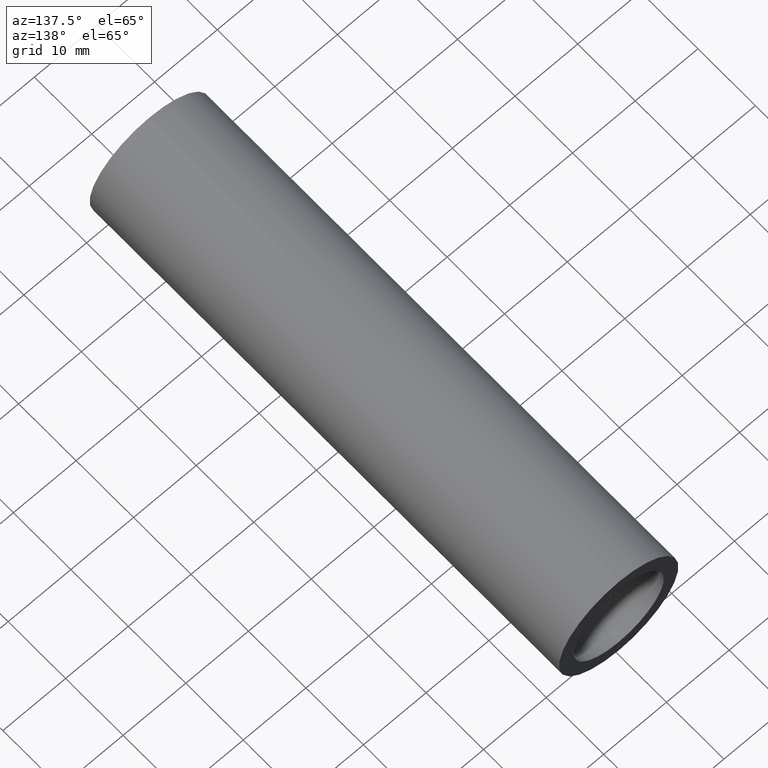
[diagram: clean part render]
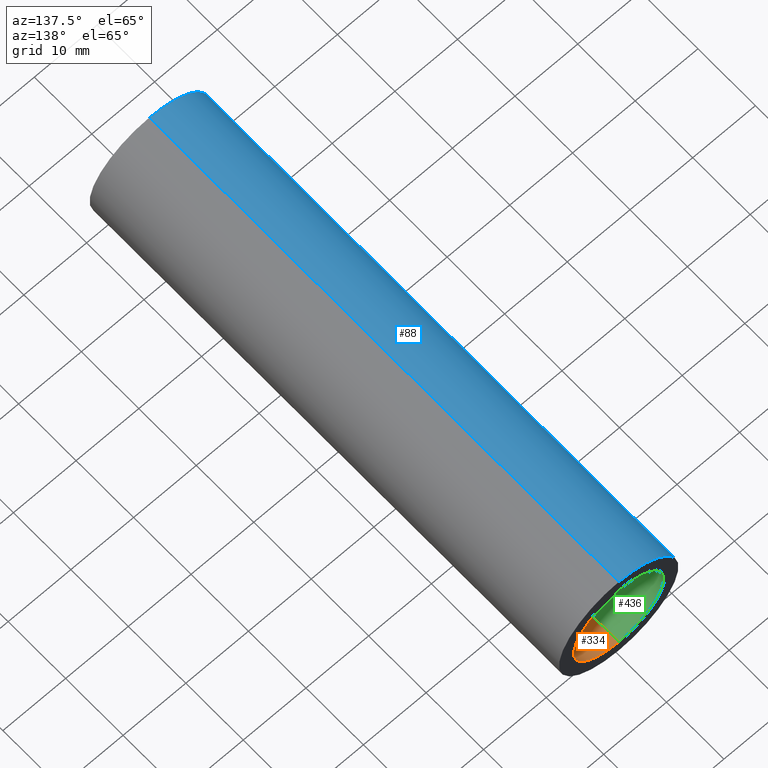
[diagram: same view with three faces highlighted in distinct colors, each labeled with its STEP entity id]
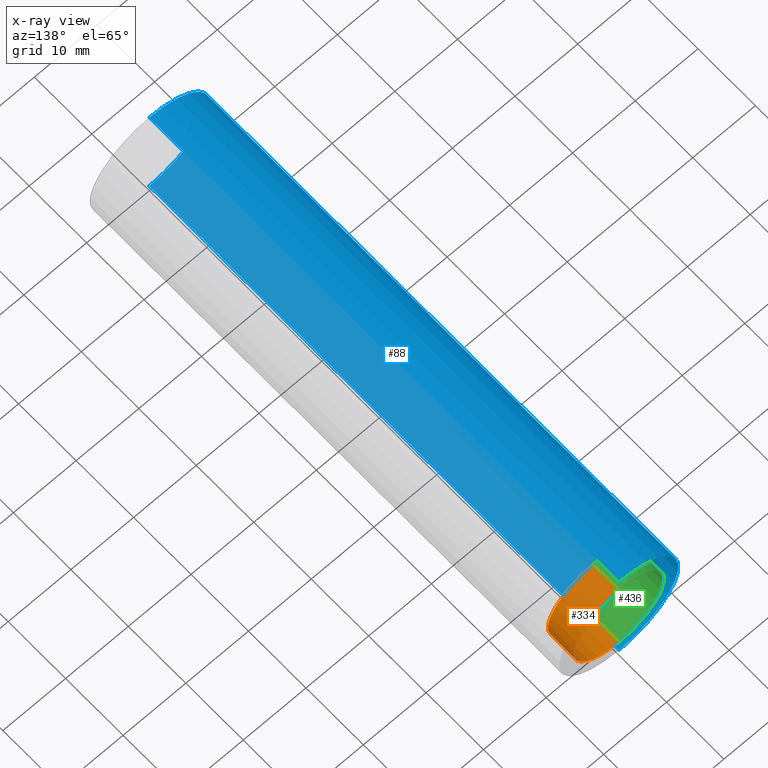
[diagram: x-ray of the same camera — body ghosted, the three highlighted faces saturated]
A machine part, auxiliary view with three faces highlighted in distinct colors.
The next image is the same camera in x-ray (body ghosted, the three faces saturated) — at least one of them is partly hidden behind the body in this view.
Their STEP definitions:

[orange] entity #334 — the highlighted cylindrical surface (partial cylindrical patch) has radius 7.2 mm, axis along (-0, 1, -0).
#43 = AXIS2_PLACEMENT_3D ( 'NONE', #624, #180, #384 ) ;
#76 = ORIENTED_EDGE ( 'NONE', *, *, #469, .F. ) ;
#77 = EDGE_CURVE ( 'NONE', #572, #400, #190, .T. ) ;
#99 = EDGE_CURVE ( 'NONE', #145, #400, #172, .T. ) ;
#101 = DIRECTION ( 'NONE',  ( 0.0000000000000000000, 0.0000000000000000000, 1.000000000000000000 ) ) ;
#113 = AXIS2_PLACEMENT_3D ( 'NONE', #612, #468, #463 ) ;
#114 = CARTESIAN_POINT ( 'NONE',  ( 0.0000000000000000000, 77.19999999999997400, 7.200000000000009900 ) ) ;
#145 = VERTEX_POINT ( 'NONE', #215 ) ;
#150 = CIRCLE ( 'NONE', #43, 7.200000000000009900 ) ;
#172 = LINE ( 'NONE', #441, #620 ) ;
#180 = DIRECTION ( 'NONE',  ( -0.0000000000000000000, 1.000000000000000000, -0.0000000000000000000 ) ) ;
#185 = LINE ( 'NONE', #297, #289 ) ;
#190 = CIRCLE ( 'NONE', #444, 7.200000000000009900 ) ;
#207 = CARTESIAN_POINT ( 'NONE',  ( 0.0000000000000000000, 81.69999999999997400, 0.0000000000000000000 ) ) ;
#215 = CARTESIAN_POINT ( 'NONE',  ( 8.817456953860955100E-016, 77.19999999999997400, -7.200000000000009900 ) ) ;
#286 = FACE_OUTER_BOUND ( 'NONE', #467, .T. ) ;
#289 = VECTOR ( 'NONE', #546, 1000.000000000000000 ) ;
#297 = CARTESIAN_POINT ( 'NONE',  ( 0.0000000000000000000, 161.3761669434274500, 7.200000000000009900 ) ) ;
#334 = ADVANCED_FACE ( 'NONE', ( #286 ), #371, .F. ) ;
#371 = CYLINDRICAL_SURFACE ( 'NONE', #113, 7.200000000000009900 ) ;
#384 = DIRECTION ( 'NONE',  ( 0.0000000000000000000, 0.0000000000000000000, 1.000000000000000000 ) ) ;
#400 = VERTEX_POINT ( 'NONE', #426 ) ;
#411 = ORIENTED_EDGE ( 'NONE', *, *, #607, .T. ) ;
#426 = CARTESIAN_POINT ( 'NONE',  ( 8.817456953860955100E-016, 81.69999999999997400, -7.200000000000009900 ) ) ;
#441 = CARTESIAN_POINT ( 'NONE',  ( 8.817456953860955100E-016, 161.3761669434274500, -7.200000000000009900 ) ) ;
#444 = AXIS2_PLACEMENT_3D ( 'NONE', #207, #538, #101 ) ;
#463 = DIRECTION ( 'NONE',  ( 0.0000000000000000000, 0.0000000000000000000, 1.000000000000000000 ) ) ;
#467 = EDGE_LOOP ( 'NONE', ( #623, #76, #411, #585 ) ) ;
#468 = DIRECTION ( 'NONE',  ( -0.0000000000000000000, 1.000000000000000000, -0.0000000000000000000 ) ) ;
#469 = EDGE_CURVE ( 'NONE', #613, #145, #150, .T. ) ;
#491 = CARTESIAN_POINT ( 'NONE',  ( 0.0000000000000000000, 81.69999999999997400, 7.200000000000009900 ) ) ;
#536 = DIRECTION ( 'NONE',  ( -0.0000000000000000000, 1.000000000000000000, -0.0000000000000000000 ) ) ;
#538 = DIRECTION ( 'NONE',  ( -0.0000000000000000000, 1.000000000000000000, -0.0000000000000000000 ) ) ;
#546 = DIRECTION ( 'NONE',  ( -0.0000000000000000000, 1.000000000000000000, -0.0000000000000000000 ) ) ;
#572 = VERTEX_POINT ( 'NONE', #491 ) ;
#585 = ORIENTED_EDGE ( 'NONE', *, *, #77, .T. ) ;
#607 = EDGE_CURVE ( 'NONE', #613, #572, #185, .T. ) ;
#612 = CARTESIAN_POINT ( 'NONE',  ( 0.0000000000000000000, 161.3761669434274500, 0.0000000000000000000 ) ) ;
#613 = VERTEX_POINT ( 'NONE', #114 ) ;
#620 = VECTOR ( 'NONE', #536, 1000.000000000000000 ) ;
#623 = ORIENTED_EDGE ( 'NONE', *, *, #99, .F. ) ;
#624 = CARTESIAN_POINT ( 'NONE',  ( 0.0000000000000000000, 77.19999999999997400, 0.0000000000000000000 ) ) ;

[blue] entity #88 — the highlighted cylindrical surface (partial cylindrical patch) has radius 9.525 mm, axis along (-0, 1, -0).
#4 = VERTEX_POINT ( 'NONE', #10 ) ;
#8 = CARTESIAN_POINT ( 'NONE',  ( 1.166476076187856400E-015, 161.3761669434274500, -9.525000000000019900 ) ) ;
#9 = AXIS2_PLACEMENT_3D ( 'NONE', #100, #54, #152 ) ;
#10 = CARTESIAN_POINT ( 'NONE',  ( 0.0000000000000000000, -2.775557561562891400E-014, 9.525000000000019900 ) ) ;
#51 = ORIENTED_EDGE ( 'NONE', *, *, #120, .F. ) ;
#54 = DIRECTION ( 'NONE',  ( -0.0000000000000000000, 1.000000000000000000, -0.0000000000000000000 ) ) ;
#70 = CARTESIAN_POINT ( 'NONE',  ( 0.0000000000000000000, -2.775557561562891400E-014, 0.0000000000000000000 ) ) ;
#71 = CARTESIAN_POINT ( 'NONE',  ( 1.166476076187856400E-015, 81.69999999999998900, -9.525000000000019900 ) ) ;
#81 = CIRCLE ( 'NONE', #9, 9.525000000000019900 ) ;
#88 = ADVANCED_FACE ( 'NONE', ( #117 ), #581, .T. ) ;
#100 = CARTESIAN_POINT ( 'NONE',  ( 0.0000000000000000000, 81.69999999999998900, 0.0000000000000000000 ) ) ;
#117 = FACE_OUTER_BOUND ( 'NONE', #143, .T. ) ;
#120 = EDGE_CURVE ( 'NONE', #239, #346, #81, .T. ) ;
#134 = DIRECTION ( 'NONE',  ( -0.0000000000000000000, 1.000000000000000000, -0.0000000000000000000 ) ) ;
#141 = EDGE_CURVE ( 'NONE', #381, #239, #379, .T. ) ;
#143 = EDGE_LOOP ( 'NONE', ( #257, #345, #425, #51 ) ) ;
#152 = DIRECTION ( 'NONE',  ( 0.0000000000000000000, 0.0000000000000000000, 1.000000000000000000 ) ) ;
#157 = DIRECTION ( 'NONE',  ( 0.0000000000000000000, 0.0000000000000000000, 1.000000000000000000 ) ) ;
#201 = DIRECTION ( 'NONE',  ( 0.0000000000000000000, 0.0000000000000000000, 1.000000000000000000 ) ) ;
#225 = CARTESIAN_POINT ( 'NONE',  ( 1.166476076187856400E-015, -2.775557561562891400E-014, -9.525000000000019900 ) ) ;
#226 = VECTOR ( 'NONE', #134, 1000.000000000000000 ) ;
#227 = DIRECTION ( 'NONE',  ( -0.0000000000000000000, 1.000000000000000000, -0.0000000000000000000 ) ) ;
#239 = VERTEX_POINT ( 'NONE', #71 ) ;
#240 = LINE ( 'NONE', #268, #226 ) ;
#242 = AXIS2_PLACEMENT_3D ( 'NONE', #534, #488, #201 ) ;
#244 = AXIS2_PLACEMENT_3D ( 'NONE', #70, #227, #157 ) ;
#248 = DIRECTION ( 'NONE',  ( -0.0000000000000000000, 1.000000000000000000, -0.0000000000000000000 ) ) ;
#257 = ORIENTED_EDGE ( 'NONE', *, *, #141, .F. ) ;
#263 = CARTESIAN_POINT ( 'NONE',  ( 0.0000000000000000000, 81.69999999999998900, 9.525000000000019900 ) ) ;
#268 = CARTESIAN_POINT ( 'NONE',  ( 0.0000000000000000000, 161.3761669434274500, 9.525000000000019900 ) ) ;
#345 = ORIENTED_EDGE ( 'NONE', *, *, #509, .T. ) ;
#346 = VERTEX_POINT ( 'NONE', #263 ) ;
#362 = VECTOR ( 'NONE', #248, 1000.000000000000000 ) ;
#379 = LINE ( 'NONE', #8, #362 ) ;
#381 = VERTEX_POINT ( 'NONE', #225 ) ;
#383 = EDGE_CURVE ( 'NONE', #4, #346, #240, .T. ) ;
#425 = ORIENTED_EDGE ( 'NONE', *, *, #383, .T. ) ;
#451 = CIRCLE ( 'NONE', #244, 9.525000000000019900 ) ;
#488 = DIRECTION ( 'NONE',  ( -0.0000000000000000000, 1.000000000000000000, -0.0000000000000000000 ) ) ;
#509 = EDGE_CURVE ( 'NONE', #381, #4, #451, .T. ) ;
#534 = CARTESIAN_POINT ( 'NONE',  ( 0.0000000000000000000, 161.3761669434274500, 0.0000000000000000000 ) ) ;
#581 = CYLINDRICAL_SURFACE ( 'NONE', #242, 9.525000000000019900 ) ;

[green] entity #436 — the highlighted cylindrical surface (partial cylindrical patch) has radius 7.2 mm, axis along (-0, 1, -0).
#67 = CIRCLE ( 'NONE', #281, 7.200000000000009900 ) ;
#99 = EDGE_CURVE ( 'NONE', #145, #400, #172, .T. ) ;
#106 = EDGE_CURVE ( 'NONE', #145, #613, #67, .T. ) ;
#111 = ORIENTED_EDGE ( 'NONE', *, *, #106, .F. ) ;
#114 = CARTESIAN_POINT ( 'NONE',  ( 0.0000000000000000000, 77.19999999999997400, 7.200000000000009900 ) ) ;
#145 = VERTEX_POINT ( 'NONE', #215 ) ;
#149 = DIRECTION ( 'NONE',  ( 0.0000000000000000000, 0.0000000000000000000, 1.000000000000000000 ) ) ;
#172 = LINE ( 'NONE', #441, #620 ) ;
#176 = ORIENTED_EDGE ( 'NONE', *, *, #99, .T. ) ;
#185 = LINE ( 'NONE', #297, #289 ) ;
#212 = CARTESIAN_POINT ( 'NONE',  ( 0.0000000000000000000, 81.69999999999997400, 0.0000000000000000000 ) ) ;
#215 = CARTESIAN_POINT ( 'NONE',  ( 8.817456953860955100E-016, 77.19999999999997400, -7.200000000000009900 ) ) ;
#216 = AXIS2_PLACEMENT_3D ( 'NONE', #382, #429, #330 ) ;
#219 = EDGE_CURVE ( 'NONE', #400, #572, #482, .T. ) ;
#224 = EDGE_LOOP ( 'NONE', ( #111, #176, #492, #388 ) ) ;
#252 = AXIS2_PLACEMENT_3D ( 'NONE', #212, #550, #309 ) ;
#281 = AXIS2_PLACEMENT_3D ( 'NONE', #296, #348, #149 ) ;
#289 = VECTOR ( 'NONE', #546, 1000.000000000000000 ) ;
#296 = CARTESIAN_POINT ( 'NONE',  ( 0.0000000000000000000, 77.19999999999997400, 0.0000000000000000000 ) ) ;
#297 = CARTESIAN_POINT ( 'NONE',  ( 0.0000000000000000000, 161.3761669434274500, 7.200000000000009900 ) ) ;
#309 = DIRECTION ( 'NONE',  ( 0.0000000000000000000, 0.0000000000000000000, 1.000000000000000000 ) ) ;
#330 = DIRECTION ( 'NONE',  ( 0.0000000000000000000, 0.0000000000000000000, 1.000000000000000000 ) ) ;
#348 = DIRECTION ( 'NONE',  ( -0.0000000000000000000, 1.000000000000000000, -0.0000000000000000000 ) ) ;
#382 = CARTESIAN_POINT ( 'NONE',  ( 0.0000000000000000000, 161.3761669434274500, 0.0000000000000000000 ) ) ;
#388 = ORIENTED_EDGE ( 'NONE', *, *, #607, .F. ) ;
#400 = VERTEX_POINT ( 'NONE', #426 ) ;
#426 = CARTESIAN_POINT ( 'NONE',  ( 8.817456953860955100E-016, 81.69999999999997400, -7.200000000000009900 ) ) ;
#429 = DIRECTION ( 'NONE',  ( -0.0000000000000000000, 1.000000000000000000, -0.0000000000000000000 ) ) ;
#436 = ADVANCED_FACE ( 'NONE', ( #582 ), #458, .F. ) ;
#441 = CARTESIAN_POINT ( 'NONE',  ( 8.817456953860955100E-016, 161.3761669434274500, -7.200000000000009900 ) ) ;
#458 = CYLINDRICAL_SURFACE ( 'NONE', #216, 7.200000000000009900 ) ;
#482 = CIRCLE ( 'NONE', #252, 7.200000000000009900 ) ;
#491 = CARTESIAN_POINT ( 'NONE',  ( 0.0000000000000000000, 81.69999999999997400, 7.200000000000009900 ) ) ;
#492 = ORIENTED_EDGE ( 'NONE', *, *, #219, .T. ) ;
#536 = DIRECTION ( 'NONE',  ( -0.0000000000000000000, 1.000000000000000000, -0.0000000000000000000 ) ) ;
#546 = DIRECTION ( 'NONE',  ( -0.0000000000000000000, 1.000000000000000000, -0.0000000000000000000 ) ) ;
#550 = DIRECTION ( 'NONE',  ( -0.0000000000000000000, 1.000000000000000000, -0.0000000000000000000 ) ) ;
#572 = VERTEX_POINT ( 'NONE', #491 ) ;
#582 = FACE_OUTER_BOUND ( 'NONE', #224, .T. ) ;
#607 = EDGE_CURVE ( 'NONE', #613, #572, #185, .T. ) ;
#613 = VERTEX_POINT ( 'NONE', #114 ) ;
#620 = VECTOR ( 'NONE', #536, 1000.000000000000000 ) ;